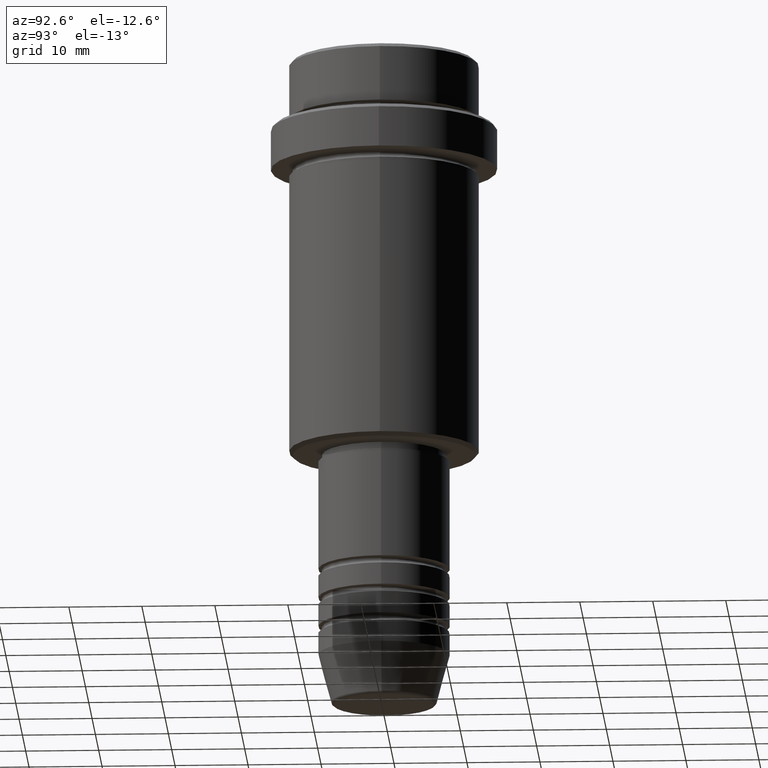
[diagram: clean part render]
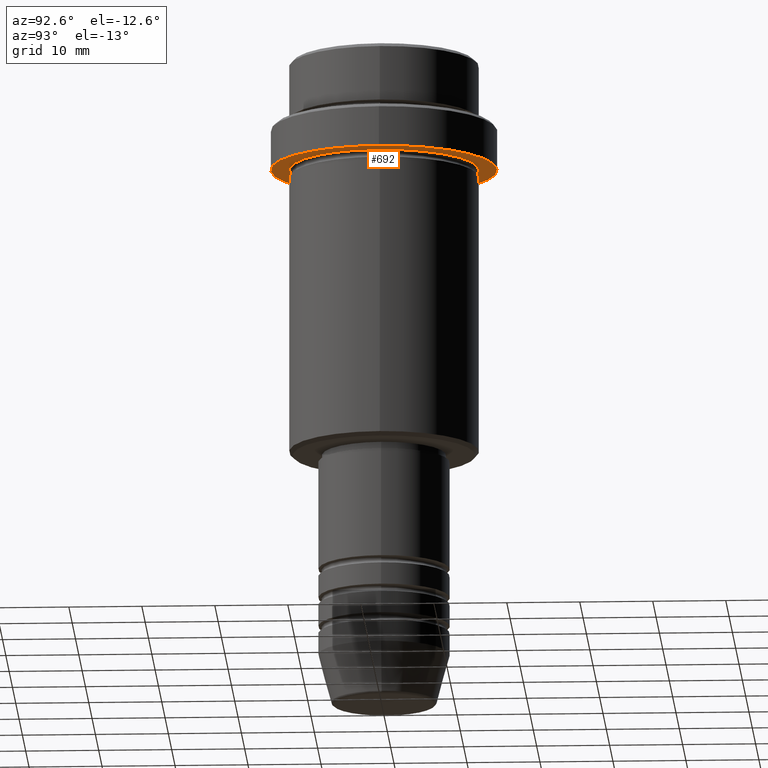
[diagram: same view with one face highlighted and labeled with its STEP entity id]
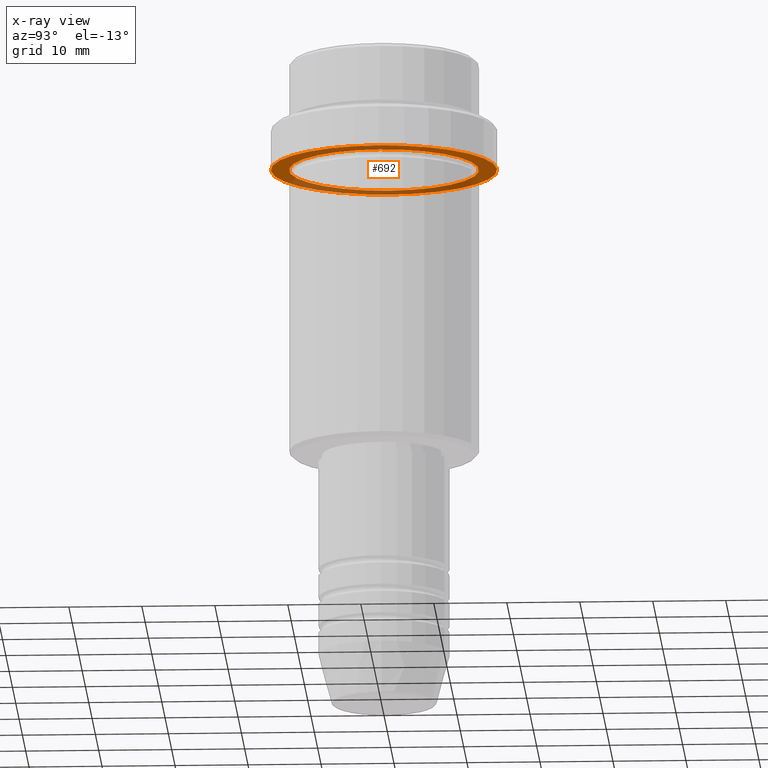
[diagram: x-ray of the same camera — body ghosted, the highlighted face saturated]
A machine part, auxiliary view. The second image highlights one B-rep face of the part: STEP entity #692.
The next image is the same camera in x-ray: the body ghosted, the highlighted face saturated — about 34% of this face is hidden behind the body in this view.
In plain terms, the highlighted planar face has unit normal (0, 0, -1).
Its self-contained STEP definition (entity closure, byte-faithful):
#82 = DIRECTION ( 'NONE',  ( -0.000000000000000000, -0.000000000000000000, 1.000000000000000000 ) ) ;
#176 = VERTEX_POINT ( 'NONE', #1021 ) ;
#262 = CARTESIAN_POINT ( 'NONE',  ( 0.000000000000000000, 0.000000000000000000, -15.00000000000000000 ) ) ;
#268 = EDGE_CURVE ( 'NONE', #1310, #176, #388, .T. ) ;
#282 = DIRECTION ( 'NONE',  ( -1.000000000000000000, 0.000000000000000000, 0.000000000000000000 ) ) ;
#354 = DIRECTION ( 'NONE',  ( 0.000000000000000000, 0.000000000000000000, -1.000000000000000000 ) ) ;
#378 = DIRECTION ( 'NONE',  ( -1.000000000000000000, 0.000000000000000000, -0.000000000000000000 ) ) ;
#387 = VERTEX_POINT ( 'NONE', #1102 ) ;
#388 = CIRCLE ( 'NONE', #839, 15.50000000000000000 ) ;
#421 = EDGE_LOOP ( 'NONE', ( #1265, #1372 ) ) ;
#484 = ORIENTED_EDGE ( 'NONE', *, *, #487, .F. ) ;
#487 = EDGE_CURVE ( 'NONE', #176, #1310, #816, .T. ) ;
#591 = VERTEX_POINT ( 'NONE', #1105 ) ;
#599 = CARTESIAN_POINT ( 'NONE',  ( 0.000000000000000000, 0.000000000000000000, -15.00000000000000000 ) ) ;
#621 = ORIENTED_EDGE ( 'NONE', *, *, #268, .F. ) ;
#677 = DIRECTION ( 'NONE',  ( -0.000000000000000000, -0.000000000000000000, 1.000000000000000000 ) ) ;
#692 = ADVANCED_FACE ( 'NONE', ( #1355, #1246 ), #792, .T. ) ;
#696 = DIRECTION ( 'NONE',  ( -0.000000000000000000, -0.000000000000000000, 1.000000000000000000 ) ) ;
#722 = DIRECTION ( 'NONE',  ( -1.000000000000000000, 0.000000000000000000, 0.000000000000000000 ) ) ;
#730 = AXIS2_PLACEMENT_3D ( 'NONE', #810, #354, #378 ) ;
#754 = CIRCLE ( 'NONE', #1017, 12.99999999999999645 ) ;
#777 = AXIS2_PLACEMENT_3D ( 'NONE', #599, #1050, #722 ) ;
#792 = PLANE ( 'NONE',  #730 ) ;
#810 = CARTESIAN_POINT ( 'NONE',  ( 0.000000000000000000, 15.50000000000000000, -15.00000000000000000 ) ) ;
#816 = CIRCLE ( 'NONE', #1233, 15.50000000000000000 ) ;
#839 = AXIS2_PLACEMENT_3D ( 'NONE', #983, #677, #1114 ) ;
#902 = CARTESIAN_POINT ( 'NONE',  ( -15.50000000000000000, 1.898202538678397557E-15, -15.00000000000000000 ) ) ;
#949 = EDGE_CURVE ( 'NONE', #387, #591, #961, .T. ) ;
#953 = DIRECTION ( 'NONE',  ( 1.000000000000000000, 0.000000000000000000, 0.000000000000000000 ) ) ;
#961 = CIRCLE ( 'NONE', #777, 12.99999999999999645 ) ;
#974 = EDGE_LOOP ( 'NONE', ( #484, #621 ) ) ;
#983 = CARTESIAN_POINT ( 'NONE',  ( 0.000000000000000000, 0.000000000000000000, -15.00000000000000000 ) ) ;
#1017 = AXIS2_PLACEMENT_3D ( 'NONE', #262, #696, #282 ) ;
#1021 = CARTESIAN_POINT ( 'NONE',  ( 15.50000000000000000, 0.000000000000000000, -15.00000000000000000 ) ) ;
#1050 = DIRECTION ( 'NONE',  ( -0.000000000000000000, -0.000000000000000000, 1.000000000000000000 ) ) ;
#1102 = CARTESIAN_POINT ( 'NONE',  ( -12.99999999999999645, 0.000000000000000000, -15.00000000000000000 ) ) ;
#1105 = CARTESIAN_POINT ( 'NONE',  ( 12.99999999999999645, 1.592040838891558701E-15, -15.00000000000000000 ) ) ;
#1114 = DIRECTION ( 'NONE',  ( 1.000000000000000000, 0.000000000000000000, 0.000000000000000000 ) ) ;
#1233 = AXIS2_PLACEMENT_3D ( 'NONE', #1395, #82, #953 ) ;
#1246 = FACE_OUTER_BOUND ( 'NONE', #974, .T. ) ;
#1265 = ORIENTED_EDGE ( 'NONE', *, *, #949, .T. ) ;
#1310 = VERTEX_POINT ( 'NONE', #902 ) ;
#1329 = EDGE_CURVE ( 'NONE', #591, #387, #754, .T. ) ;
#1355 = FACE_BOUND ( 'NONE', #421, .T. ) ;
#1372 = ORIENTED_EDGE ( 'NONE', *, *, #1329, .T. ) ;
#1395 = CARTESIAN_POINT ( 'NONE',  ( 0.000000000000000000, 0.000000000000000000, -15.00000000000000000 ) ) ;